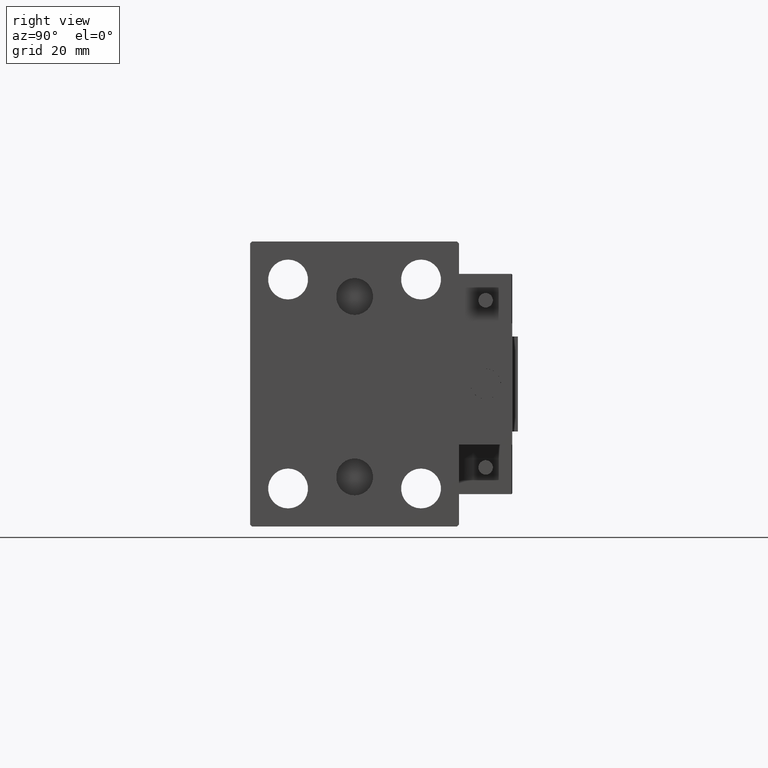
[diagram: clean part render]
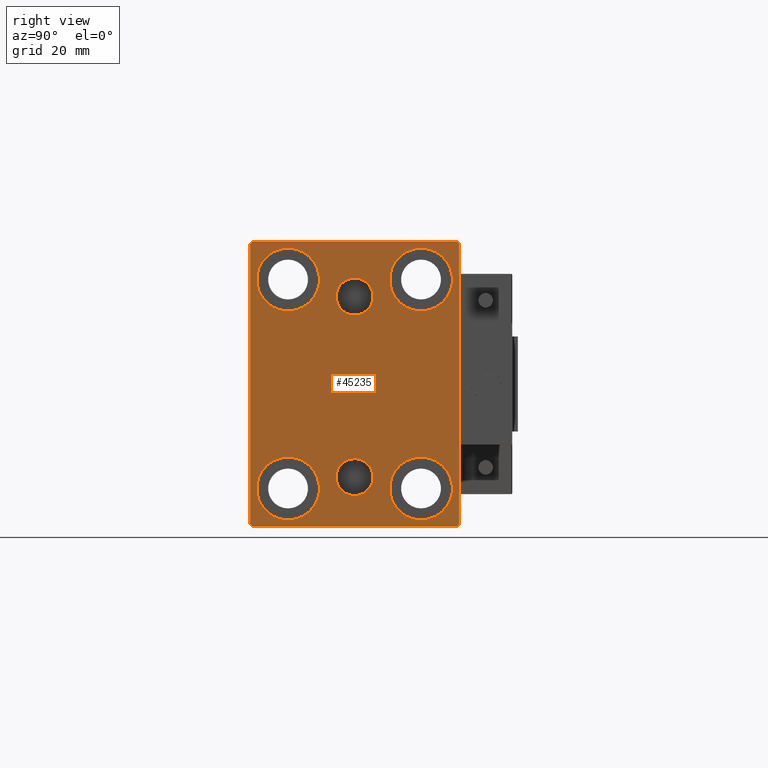
[diagram: same view with one face highlighted and labeled with its STEP entity id]
A machine part, right view. The second image highlights one B-rep face of the part: STEP entity #45235.
In plain terms, the highlighted planar face has unit normal (1, 0, 0).
Its self-contained STEP definition (entity closure, byte-faithful):
#298 = CARTESIAN_POINT ( 'NONE',  ( 85.00000000000000000, -27.50000000000000355, -37.50000000000000000 ) ) ;
#495 = VECTOR ( 'NONE', #38339, 1000.000000000000114 ) ;
#1230 = ORIENTED_EDGE ( 'NONE', *, *, #11690, .T. ) ;
#1334 = FACE_BOUND ( 'NONE', #7245, .T. ) ;
#1628 = VERTEX_POINT ( 'NONE', #13521 ) ;
#1683 = ORIENTED_EDGE ( 'NONE', *, *, #2506, .T. ) ;
#2210 = DIRECTION ( 'NONE',  ( 0.000000000000000000, 0.000000000000000000, 1.000000000000000000 ) ) ;
#2348 = DIRECTION ( 'NONE',  ( 0.000000000000000000, 0.000000000000000000, 1.000000000000000000 ) ) ;
#2506 = EDGE_CURVE ( 'NONE', #1628, #12366, #45598, .T. ) ;
#2845 = AXIS2_PLACEMENT_3D ( 'NONE', #48575, #14007, #26834 ) ;
#3263 = AXIS2_PLACEMENT_3D ( 'NONE', #26519, #11381, #22738 ) ;
#4042 = LINE ( 'NONE', #45944, #13147 ) ;
#4464 = ORIENTED_EDGE ( 'NONE', *, *, #43816, .F. ) ;
#4825 = CARTESIAN_POINT ( 'NONE',  ( 85.00000000000000000, -17.49999999999999645, 27.49999999999999645 ) ) ;
#4928 = VERTEX_POINT ( 'NONE', #19374 ) ;
#5126 = FACE_BOUND ( 'NONE', #39445, .T. ) ;
#5229 = VECTOR ( 'NONE', #10567, 1000.000000000000114 ) ;
#5262 = CIRCLE ( 'NONE', #2845, 4.859999999999999432 ) ;
#5648 = ORIENTED_EDGE ( 'NONE', *, *, #48601, .T. ) ;
#5915 = ORIENTED_EDGE ( 'NONE', *, *, #34041, .T. ) ;
#6003 = DIRECTION ( 'NONE',  ( -1.000000000000000000, -0.000000000000000000, -0.000000000000000000 ) ) ;
#6130 = ORIENTED_EDGE ( 'NONE', *, *, #45053, .F. ) ;
#6447 = ORIENTED_EDGE ( 'NONE', *, *, #39816, .T. ) ;
#6589 = EDGE_CURVE ( 'NONE', #8712, #30384, #46777, .T. ) ;
#6956 = CARTESIAN_POINT ( 'NONE',  ( 85.00000000000000000, 3.000384657911015074E-15, -24.49999999999999289 ) ) ;
#7245 = EDGE_LOOP ( 'NONE', ( #10822, #31238 ) ) ;
#7806 = VERTEX_POINT ( 'NONE', #26217 ) ;
#8109 = VERTEX_POINT ( 'NONE', #40800 ) ;
#8127 = EDGE_CURVE ( 'NONE', #7806, #24100, #19449, .T. ) ;
#8139 = EDGE_CURVE ( 'NONE', #22303, #16751, #8160, .T. ) ;
#8160 = CIRCLE ( 'NONE', #34726, 4.859999999999999432 ) ;
#8569 = LINE ( 'NONE', #39093, #45315 ) ;
#8712 = VERTEX_POINT ( 'NONE', #25974 ) ;
#8824 = DIRECTION ( 'NONE',  ( 0.000000000000000000, -0.7071067811865474617, -0.7071067811865474617 ) ) ;
#8830 = VERTEX_POINT ( 'NONE', #15380 ) ;
#9467 = EDGE_LOOP ( 'NONE', ( #6130, #47350 ) ) ;
#9923 = DIRECTION ( 'NONE',  ( 0.000000000000000000, 0.000000000000000000, 1.000000000000000000 ) ) ;
#10273 = EDGE_LOOP ( 'NONE', ( #45145, #28619 ) ) ;
#10567 = DIRECTION ( 'NONE',  ( -0.000000000000000000, 0.7071067811865474617, -0.7071067811865474617 ) ) ;
#10822 = ORIENTED_EDGE ( 'NONE', *, *, #40889, .T. ) ;
#11018 = LINE ( 'NONE', #34214, #35787 ) ;
#11381 = DIRECTION ( 'NONE',  ( -1.000000000000000000, -0.000000000000000000, -0.000000000000000000 ) ) ;
#11673 = CIRCLE ( 'NONE', #19744, 8.249999999999992895 ) ;
#11690 = EDGE_CURVE ( 'NONE', #17242, #4928, #27585, .T. ) ;
#11759 = DIRECTION ( 'NONE',  ( 0.000000000000000000, -9.251858538542970348E-17, 1.000000000000000000 ) ) ;
#11918 = LINE ( 'NONE', #298, #16390 ) ;
#12282 = CARTESIAN_POINT ( 'NONE',  ( 85.00000000000000000, 17.49999999999999645, -19.25000000000000355 ) ) ;
#12287 = CARTESIAN_POINT ( 'NONE',  ( 85.00000000000000000, -27.00000000000000355, -37.50000000000000000 ) ) ;
#12366 = VERTEX_POINT ( 'NONE', #25119 ) ;
#12698 = FACE_BOUND ( 'NONE', #9467, .T. ) ;
#12816 = CARTESIAN_POINT ( 'NONE',  ( 85.00000000000000000, 3.000384657911015074E-15, -29.35999999999999233 ) ) ;
#12931 = EDGE_CURVE ( 'NONE', #26511, #24975, #11918, .T. ) ;
#12948 = DIRECTION ( 'NONE',  ( 0.000000000000000000, 0.000000000000000000, -1.000000000000000000 ) ) ;
#13093 = ORIENTED_EDGE ( 'NONE', *, *, #15613, .T. ) ;
#13147 = VECTOR ( 'NONE', #42147, 1000.000000000000000 ) ;
#13160 = DIRECTION ( 'NONE',  ( 0.000000000000000000, 0.000000000000000000, 1.000000000000000000 ) ) ;
#13344 = CARTESIAN_POINT ( 'NONE',  ( 85.00000000000000000, -17.50000000000000355, -27.50000000000000355 ) ) ;
#13475 = CARTESIAN_POINT ( 'NONE',  ( 85.00000000000000000, -17.50000000000000355, -27.50000000000000355 ) ) ;
#13521 = CARTESIAN_POINT ( 'NONE',  ( 85.00000000000000000, -27.50000000000000355, 37.00000000000000000 ) ) ;
#13803 = CARTESIAN_POINT ( 'NONE',  ( 85.00000000000000000, -17.50000000000000355, -35.75000000000000711 ) ) ;
#14007 = DIRECTION ( 'NONE',  ( 1.000000000000000000, 0.000000000000000000, -0.000000000000000000 ) ) ;
#14083 = DIRECTION ( 'NONE',  ( 0.000000000000000000, 0.000000000000000000, -1.000000000000000000 ) ) ;
#14229 = AXIS2_PLACEMENT_3D ( 'NONE', #6956, #42250, #49841 ) ;
#15380 = CARTESIAN_POINT ( 'NONE',  ( 85.00000000000000000, 27.49999999999999645, 37.00000000000001421 ) ) ;
#15560 = AXIS2_PLACEMENT_3D ( 'NONE', #4825, #47727, #13160 ) ;
#15613 = EDGE_CURVE ( 'NONE', #36654, #26150, #4042, .T. ) ;
#15794 = LINE ( 'NONE', #23840, #31123 ) ;
#16382 = CARTESIAN_POINT ( 'NONE',  ( 85.00000000000000000, -17.49999999999999645, 35.74999999999999289 ) ) ;
#16390 = VECTOR ( 'NONE', #28037, 1000.000000000000000 ) ;
#16590 = CARTESIAN_POINT ( 'NONE',  ( 85.00000000000000000, 26.99999999999999645, 37.50000000000000711 ) ) ;
#16743 = FACE_BOUND ( 'NONE', #10273, .T. ) ;
#16751 = VERTEX_POINT ( 'NONE', #30861 ) ;
#17211 = EDGE_CURVE ( 'NONE', #42176, #37701, #20406, .T. ) ;
#17225 = ORIENTED_EDGE ( 'NONE', *, *, #12931, .T. ) ;
#17242 = VERTEX_POINT ( 'NONE', #16382 ) ;
#17264 = AXIS2_PLACEMENT_3D ( 'NONE', #25030, #17736, #33098 ) ;
#17511 = DIRECTION ( 'NONE',  ( -1.000000000000000000, -0.000000000000000000, -0.000000000000000000 ) ) ;
#17736 = DIRECTION ( 'NONE',  ( 1.000000000000000000, 0.000000000000000000, 0.000000000000000000 ) ) ;
#17899 = DIRECTION ( 'NONE',  ( 0.000000000000000000, 0.000000000000000000, 1.000000000000000000 ) ) ;
#18155 = CARTESIAN_POINT ( 'NONE',  ( 85.00000000000000000, -32.25000000000000000, -32.25000000000000000 ) ) ;
#18253 = DIRECTION ( 'NONE',  ( -1.000000000000000000, -0.000000000000000000, -0.000000000000000000 ) ) ;
#18778 = CARTESIAN_POINT ( 'NONE',  ( 85.00000000000000000, 17.50000000000000355, 19.25000000000000000 ) ) ;
#19220 = EDGE_LOOP ( 'NONE', ( #4464, #47569 ) ) ;
#19374 = CARTESIAN_POINT ( 'NONE',  ( 85.00000000000000000, -17.49999999999999645, 19.25000000000000000 ) ) ;
#19449 = CIRCLE ( 'NONE', #45228, 8.249999999999992895 ) ;
#19744 = AXIS2_PLACEMENT_3D ( 'NONE', #40991, #49319, #29129 ) ;
#20406 = CIRCLE ( 'NONE', #48617, 8.250000000000000000 ) ;
#20892 = VECTOR ( 'NONE', #14083, 1000.000000000000000 ) ;
#21533 = EDGE_LOOP ( 'NONE', ( #43585, #5915 ) ) ;
#21742 = CARTESIAN_POINT ( 'NONE',  ( 85.00000000000000000, 3.595563002296627957E-15, -19.63999999999999346 ) ) ;
#21828 = CARTESIAN_POINT ( 'NONE',  ( 85.00000000000000000, 27.00000000000000355, -37.50000000000000000 ) ) ;
#22277 = CARTESIAN_POINT ( 'NONE',  ( 85.00000000000000000, -17.49999999999999645, 27.49999999999999645 ) ) ;
#22303 = VERTEX_POINT ( 'NONE', #33583 ) ;
#22632 = DIRECTION ( 'NONE',  ( 0.000000000000000000, 0.000000000000000000, -1.000000000000000000 ) ) ;
#22738 = DIRECTION ( 'NONE',  ( 0.000000000000000000, 0.000000000000000000, 1.000000000000000000 ) ) ;
#22965 = CARTESIAN_POINT ( 'NONE',  ( 85.00000000000000000, -27.00000000000000355, 37.50000000000000000 ) ) ;
#23063 = EDGE_CURVE ( 'NONE', #8830, #36654, #15794, .T. ) ;
#23135 = CIRCLE ( 'NONE', #35183, 8.250000000000000000 ) ;
#23840 = CARTESIAN_POINT ( 'NONE',  ( 85.00000000000000000, 32.24999999999981526, 32.25000000000025580 ) ) ;
#23858 = ORIENTED_EDGE ( 'NONE', *, *, #41933, .T. ) ;
#24100 = VERTEX_POINT ( 'NONE', #18778 ) ;
#24307 = CIRCLE ( 'NONE', #31540, 8.250000000000000000 ) ;
#24560 = AXIS2_PLACEMENT_3D ( 'NONE', #39938, #47526, #12948 ) ;
#24975 = VERTEX_POINT ( 'NONE', #21828 ) ;
#25030 = CARTESIAN_POINT ( 'NONE',  ( 85.00000000000000000, -3.571693674697836683E-15, 23.00000000000000711 ) ) ;
#25108 = ORIENTED_EDGE ( 'NONE', *, *, #36226, .T. ) ;
#25119 = CARTESIAN_POINT ( 'NONE',  ( 85.00000000000000000, -27.50000000000000355, -37.00000000000000000 ) ) ;
#25161 = CARTESIAN_POINT ( 'NONE',  ( 85.00000000000000000, 17.50000000000000355, 27.49999999999999645 ) ) ;
#25695 = CARTESIAN_POINT ( 'NONE',  ( 85.00000000000000000, 17.49999999999999645, -27.50000000000000355 ) ) ;
#25845 = EDGE_CURVE ( 'NONE', #37701, #42176, #23135, .T. ) ;
#25974 = CARTESIAN_POINT ( 'NONE',  ( 85.00000000000000000, 17.49999999999999645, -35.75000000000000711 ) ) ;
#26150 = VERTEX_POINT ( 'NONE', #22965 ) ;
#26217 = CARTESIAN_POINT ( 'NONE',  ( 85.00000000000000000, 17.50000000000000355, 35.74999999999999289 ) ) ;
#26511 = VERTEX_POINT ( 'NONE', #12287 ) ;
#26519 = CARTESIAN_POINT ( 'NONE',  ( 85.00000000000000000, 17.49999999999999645, -27.50000000000000355 ) ) ;
#26834 = DIRECTION ( 'NONE',  ( 0.000000000000000000, 0.000000000000000000, 1.000000000000000000 ) ) ;
#27585 = CIRCLE ( 'NONE', #15560, 8.249999999999992895 ) ;
#28037 = DIRECTION ( 'NONE',  ( 0.000000000000000000, 1.000000000000000000, 0.000000000000000000 ) ) ;
#28619 = ORIENTED_EDGE ( 'NONE', *, *, #25845, .T. ) ;
#29129 = DIRECTION ( 'NONE',  ( 0.000000000000000000, 0.000000000000000000, 1.000000000000000000 ) ) ;
#30384 = VERTEX_POINT ( 'NONE', #12282 ) ;
#30861 = CARTESIAN_POINT ( 'NONE',  ( 85.00000000000000000, -3.571693674697836683E-15, 18.14000000000000767 ) ) ;
#31123 = VECTOR ( 'NONE', #31159, 1000.000000000000000 ) ;
#31159 = DIRECTION ( 'NONE',  ( -0.000000000000000000, -0.7071067811865524577, 0.7071067811865426878 ) ) ;
#31238 = ORIENTED_EDGE ( 'NONE', *, *, #8127, .T. ) ;
#31540 = AXIS2_PLACEMENT_3D ( 'NONE', #25695, #37050, #17899 ) ;
#32108 = PLANE ( 'NONE',  #24560 ) ;
#32610 = FACE_OUTER_BOUND ( 'NONE', #42527, .T. ) ;
#33098 = DIRECTION ( 'NONE',  ( 0.000000000000000000, 0.000000000000000000, -1.000000000000000000 ) ) ;
#33577 = VERTEX_POINT ( 'NONE', #21742 ) ;
#33583 = CARTESIAN_POINT ( 'NONE',  ( 85.00000000000000000, -2.976515330312223406E-15, 27.86000000000000654 ) ) ;
#33743 = CARTESIAN_POINT ( 'NONE',  ( 85.00000000000000000, -27.50000000000000355, 37.50000000000000000 ) ) ;
#34041 = EDGE_CURVE ( 'NONE', #30384, #8712, #24307, .T. ) ;
#34214 = CARTESIAN_POINT ( 'NONE',  ( 85.00000000000000000, 27.50000000000000355, -37.50000000000000000 ) ) ;
#34726 = AXIS2_PLACEMENT_3D ( 'NONE', #48638, #49880, #22632 ) ;
#35043 = LINE ( 'NONE', #45924, #495 ) ;
#35183 = AXIS2_PLACEMENT_3D ( 'NONE', #13475, #17511, #9923 ) ;
#35787 = VECTOR ( 'NONE', #11759, 1000.000000000000000 ) ;
#35889 = FACE_BOUND ( 'NONE', #19220, .T. ) ;
#35961 = CIRCLE ( 'NONE', #14229, 4.859999999999999432 ) ;
#36226 = EDGE_CURVE ( 'NONE', #26150, #1628, #8569, .T. ) ;
#36371 = ORIENTED_EDGE ( 'NONE', *, *, #23063, .T. ) ;
#36654 = VERTEX_POINT ( 'NONE', #16590 ) ;
#37050 = DIRECTION ( 'NONE',  ( -1.000000000000000000, -0.000000000000000000, -0.000000000000000000 ) ) ;
#37701 = VERTEX_POINT ( 'NONE', #38227 ) ;
#38227 = CARTESIAN_POINT ( 'NONE',  ( 85.00000000000000000, -17.50000000000000355, -19.25000000000000355 ) ) ;
#38267 = AXIS2_PLACEMENT_3D ( 'NONE', #22277, #18253, #2348 ) ;
#38339 = DIRECTION ( 'NONE',  ( -0.000000000000000000, 0.7071067811865474617, 0.7071067811865474617 ) ) ;
#38995 = CIRCLE ( 'NONE', #17264, 4.859999999999999432 ) ;
#39093 = CARTESIAN_POINT ( 'NONE',  ( 85.00000000000000000, -32.25000000000000000, 32.25000000000000000 ) ) ;
#39445 = EDGE_LOOP ( 'NONE', ( #46527, #1230 ) ) ;
#39750 = VERTEX_POINT ( 'NONE', #12816 ) ;
#39816 = EDGE_CURVE ( 'NONE', #8109, #8830, #11018, .T. ) ;
#39823 = DIRECTION ( 'NONE',  ( 0.000000000000000000, 0.000000000000000000, 1.000000000000000000 ) ) ;
#39938 = CARTESIAN_POINT ( 'NONE',  ( 85.00000000000000000, 0.000000000000000000, 0.000000000000000000 ) ) ;
#40800 = CARTESIAN_POINT ( 'NONE',  ( 85.00000000000000000, 27.50000000000000355, -37.00000000000000000 ) ) ;
#40889 = EDGE_CURVE ( 'NONE', #24100, #7806, #11673, .T. ) ;
#40991 = CARTESIAN_POINT ( 'NONE',  ( 85.00000000000000000, 17.50000000000000355, 27.49999999999999645 ) ) ;
#41933 = EDGE_CURVE ( 'NONE', #12366, #26511, #48435, .T. ) ;
#42147 = DIRECTION ( 'NONE',  ( 0.000000000000000000, -1.000000000000000000, -1.261617073437677999E-16 ) ) ;
#42176 = VERTEX_POINT ( 'NONE', #13803 ) ;
#42250 = DIRECTION ( 'NONE',  ( 1.000000000000000000, 0.000000000000000000, -0.000000000000000000 ) ) ;
#42304 = CIRCLE ( 'NONE', #38267, 8.249999999999992895 ) ;
#42527 = EDGE_LOOP ( 'NONE', ( #13093, #25108, #1683, #23858, #17225, #5648, #6447, #36371 ) ) ;
#43110 = DIRECTION ( 'NONE',  ( -1.000000000000000000, -0.000000000000000000, -0.000000000000000000 ) ) ;
#43468 = FACE_BOUND ( 'NONE', #21533, .T. ) ;
#43585 = ORIENTED_EDGE ( 'NONE', *, *, #6589, .T. ) ;
#43816 = EDGE_CURVE ( 'NONE', #16751, #22303, #38995, .T. ) ;
#45053 = EDGE_CURVE ( 'NONE', #39750, #33577, #5262, .T. ) ;
#45145 = ORIENTED_EDGE ( 'NONE', *, *, #17211, .T. ) ;
#45228 = AXIS2_PLACEMENT_3D ( 'NONE', #25161, #6003, #2210 ) ;
#45235 = ADVANCED_FACE ( 'NONE', ( #35889, #12698, #43468, #5126, #1334, #16743, #32610 ), #32108, .T. ) ;
#45315 = VECTOR ( 'NONE', #8824, 1000.000000000000114 ) ;
#45598 = LINE ( 'NONE', #33743, #20892 ) ;
#45924 = CARTESIAN_POINT ( 'NONE',  ( 85.00000000000000000, 32.25000000000000000, -32.25000000000000000 ) ) ;
#45944 = CARTESIAN_POINT ( 'NONE',  ( 85.00000000000000000, 27.49999999999999645, 37.50000000000000711 ) ) ;
#46076 = EDGE_CURVE ( 'NONE', #4928, #17242, #42304, .T. ) ;
#46527 = ORIENTED_EDGE ( 'NONE', *, *, #46076, .T. ) ;
#46777 = CIRCLE ( 'NONE', #3263, 8.250000000000000000 ) ;
#47350 = ORIENTED_EDGE ( 'NONE', *, *, #49332, .F. ) ;
#47526 = DIRECTION ( 'NONE',  ( 1.000000000000000000, 0.000000000000000000, 0.000000000000000000 ) ) ;
#47569 = ORIENTED_EDGE ( 'NONE', *, *, #8139, .F. ) ;
#47727 = DIRECTION ( 'NONE',  ( -1.000000000000000000, -0.000000000000000000, -0.000000000000000000 ) ) ;
#48435 = LINE ( 'NONE', #18155, #5229 ) ;
#48575 = CARTESIAN_POINT ( 'NONE',  ( 85.00000000000000000, 3.000384657911015074E-15, -24.49999999999999289 ) ) ;
#48601 = EDGE_CURVE ( 'NONE', #24975, #8109, #35043, .T. ) ;
#48617 = AXIS2_PLACEMENT_3D ( 'NONE', #13344, #43110, #39823 ) ;
#48638 = CARTESIAN_POINT ( 'NONE',  ( 85.00000000000000000, -3.571693674697836683E-15, 23.00000000000000711 ) ) ;
#49319 = DIRECTION ( 'NONE',  ( -1.000000000000000000, -0.000000000000000000, -0.000000000000000000 ) ) ;
#49332 = EDGE_CURVE ( 'NONE', #33577, #39750, #35961, .T. ) ;
#49841 = DIRECTION ( 'NONE',  ( 0.000000000000000000, 0.000000000000000000, 1.000000000000000000 ) ) ;
#49880 = DIRECTION ( 'NONE',  ( 1.000000000000000000, 0.000000000000000000, 0.000000000000000000 ) ) ;